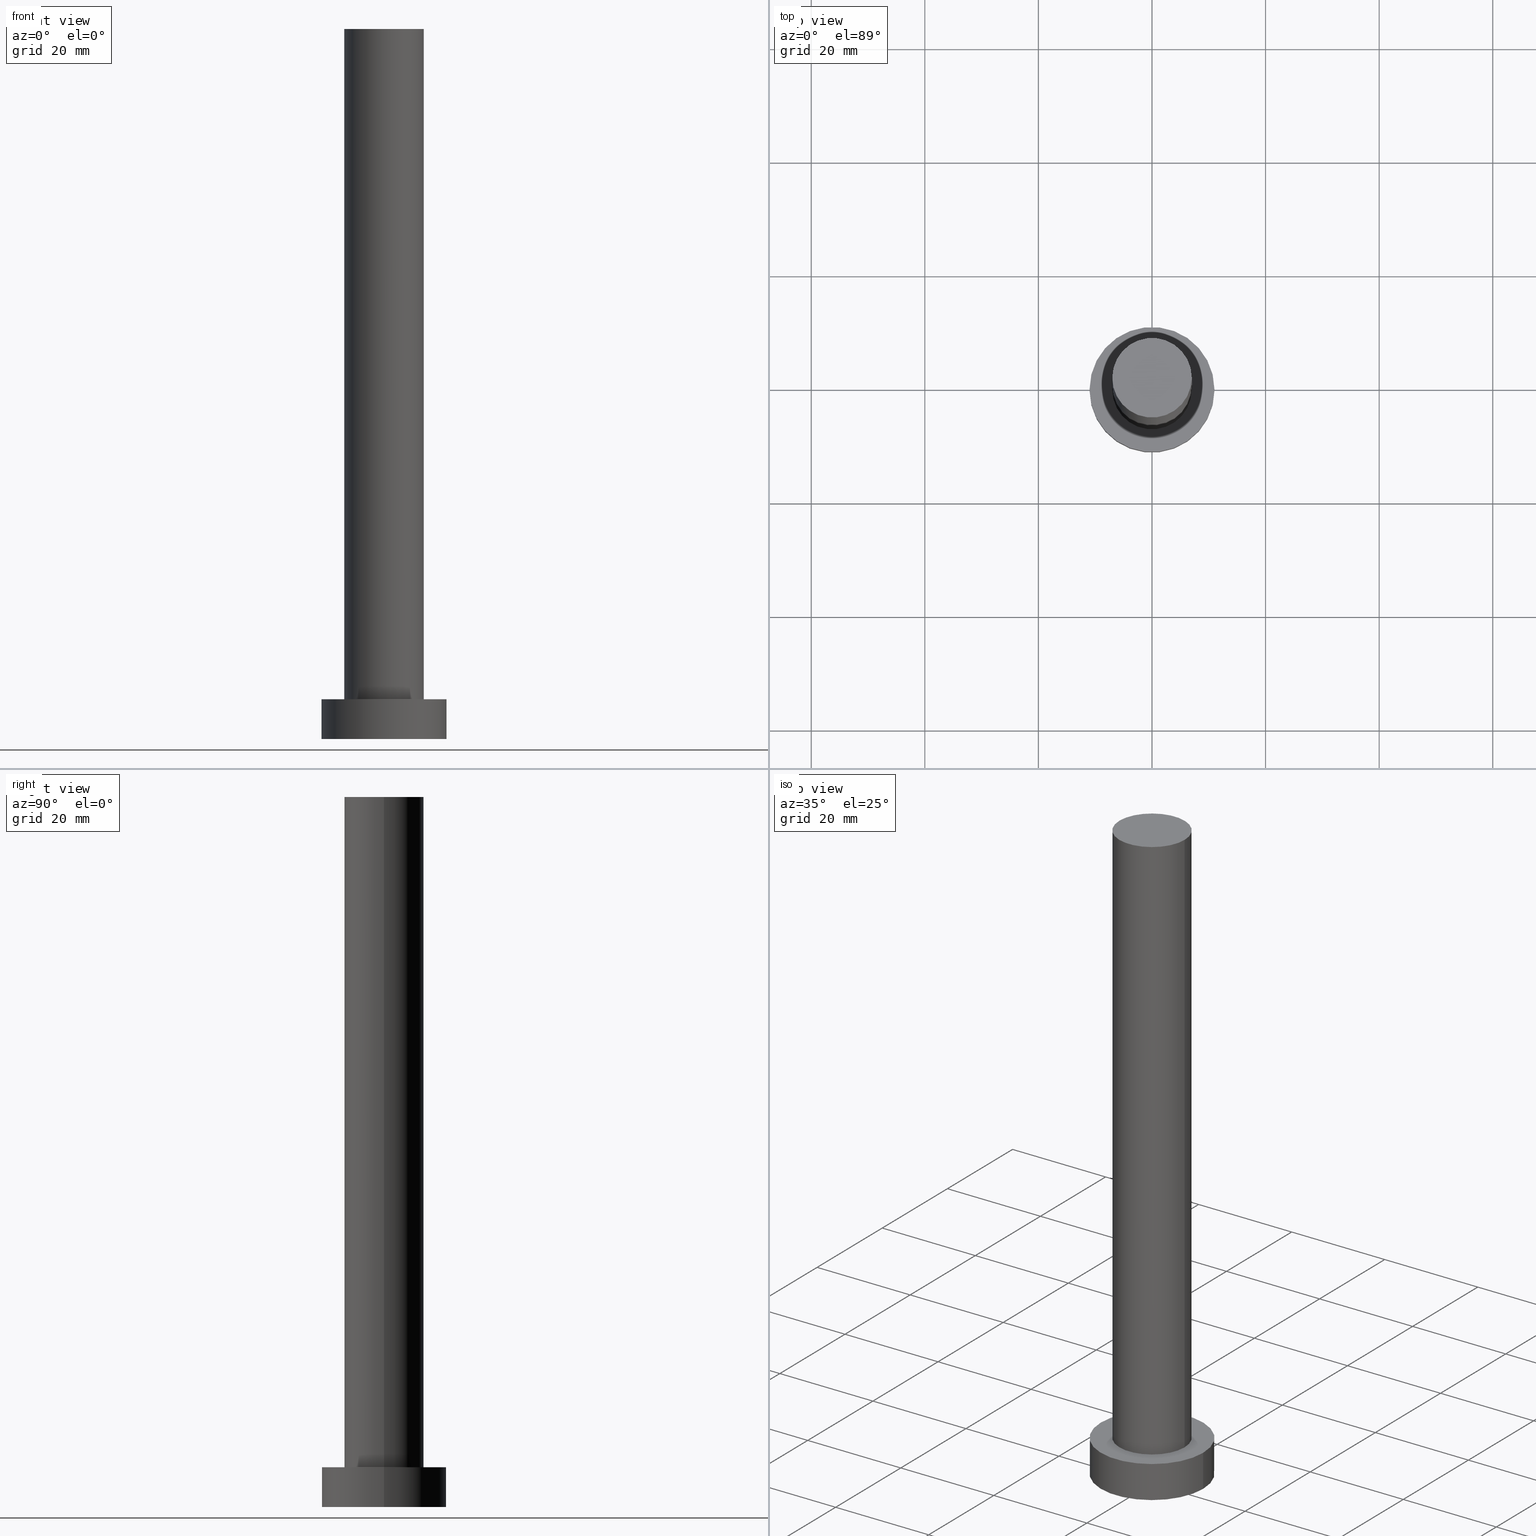
[diagram: canonical four-view strip — front | top / right | iso, engineering-drawing reading convention]
A machine part, canonical four-view strip (front | top / right | iso — engineering-drawing reading convention). The complete STEP part file that produces these views, byte-faithful:
ISO-10303-21;
HEADER;
FILE_DESCRIPTION (( 'STEP AP203' ),
    '1' );
FILE_NAME ('5c96.STEP',
    '2023-02-13T08:55:39',
    ( '' ),
    ( '' ),
    'SwSTEP 2.0',
    'SolidWorks 2019',
    '' );
FILE_SCHEMA (( 'CONFIG_CONTROL_DESIGN' ));
ENDSEC;

DATA;
#1 = DIRECTION ( 'NONE',  ( -0.000000000000000000, -0.000000000000000000, -1.000000000000000000 ) ) ;
#2 = APPLICATION_PROTOCOL_DEFINITION ( 'international standard', 'config_control_design', 1994, #159 ) ;
#3 = CYLINDRICAL_SURFACE ( 'NONE', #226, 11.00000000000000000 ) ;
#4 = CC_DESIGN_DATE_AND_TIME_ASSIGNMENT ( #24, #162, ( #224 ) ) ;
#5 = AXIS2_PLACEMENT_3D ( 'NONE', #173, #133, #72 ) ;
#6 = APPROVAL_STATUS ( 'not_yet_approved' ) ;
#7 = PERSON ( 'NEUR�EN�', 'NEUR�EN�', 'NEUR�EN�', ('NEUR�EN�'), ('NEUR�EN�'), ('NEUR�EN�') ) ;
#8 = DATE_AND_TIME ( #89, #75 ) ;
#9 = MANIFOLD_SOLID_BREP ( 'P�idat vysunut�m3', #185 ) ;
#10 = EDGE_LOOP ( 'NONE', ( #71, #46, #120, #207 ) ) ;
#11 = APPROVAL_STATUS ( 'not_yet_approved' ) ;
#12 = APPROVAL_PERSON_ORGANIZATION ( #37, #125, #199 ) ;
#13 = ORIENTED_EDGE ( 'NONE', *, *, #154, .F. ) ;
#14 = VERTEX_POINT ( 'NONE', #172 ) ;
#15 = LINE ( 'NONE', #112, #123 ) ;
#16 = DIRECTION ( 'NONE',  ( 1.000000000000000000, 0.000000000000000000, -0.000000000000000000 ) ) ;
#17 = CYLINDRICAL_SURFACE ( 'NONE', #169, 7.000000000000000888 ) ;
#18 = ADVANCED_FACE ( 'NONE', ( #19 ), #17, .T. ) ;
#19 = FACE_OUTER_BOUND ( 'NONE', #122, .T. ) ;
#20 = DIRECTION ( 'NONE',  ( 0.000000000000000000, 0.000000000000000000, 1.000000000000000000 ) ) ;
#21 = AXIS2_PLACEMENT_3D ( 'NONE', #136, #61, #221 ) ;
#22 = PERSON_AND_ORGANIZATION_ROLE ( 'creator' ) ;
#23 = CARTESIAN_POINT ( 'NONE',  ( 0.000000000000000000, 0.000000000000000000, 125.0000000000000000 ) ) ;
#24 = DATE_AND_TIME ( #241, #51 ) ;
#25 = PERSON_AND_ORGANIZATION ( #7, #135 ) ;
#26 = EDGE_CURVE ( 'NONE', #70, #76, #106, .T. ) ;
#27 = ORIENTED_EDGE ( 'NONE', *, *, #227, .T. ) ;
#28 = CARTESIAN_POINT ( 'NONE',  ( -7.000000000000000888, 0.000000000000000000, 125.0000000000000000 ) ) ;
#29 = ADVANCED_BREP_SHAPE_REPRESENTATION ( '5c96', ( #9, #21 ), #151 ) ;
#30 = CARTESIAN_POINT ( 'NONE',  ( 0.000000000000000000, 0.000000000000000000, 0.000000000000000000 ) ) ;
#31 = DIRECTION ( 'NONE',  ( 1.000000000000000000, 0.000000000000000000, 0.000000000000000000 ) ) ;
#32 = DIRECTION ( 'NONE',  ( 1.000000000000000000, 0.000000000000000000, 0.000000000000000000 ) ) ;
#33 = DIRECTION ( 'NONE',  ( -0.000000000000000000, -0.000000000000000000, -1.000000000000000000 ) ) ;
#34 = ADVANCED_FACE ( 'NONE', ( #189 ), #218, .T. ) ;
#35 = CARTESIAN_POINT ( 'NONE',  ( 0.000000000000000000, 0.000000000000000000, 7.000000000000000000 ) ) ;
#36 = DIRECTION ( 'NONE',  ( 1.000000000000000000, 0.000000000000000000, 0.000000000000000000 ) ) ;
#37 = PERSON_AND_ORGANIZATION ( #7, #135 ) ;
#38 = CARTESIAN_POINT ( 'NONE',  ( 0.000000000000000000, 0.000000000000000000, 125.0000000000000000 ) ) ;
#39 = CC_DESIGN_PERSON_AND_ORGANIZATION_ASSIGNMENT ( #161, #22, ( #224 ) ) ;
#40 = CALENDAR_DATE ( 2023, 13, 2 ) ;
#41 = AXIS2_PLACEMENT_3D ( 'NONE', #78, #114, #192 ) ;
#42 = APPROVAL_ROLE ( '' ) ;
#43 = PRODUCT_DEFINITION_SHAPE ( 'NONE', 'NONE',  #224 ) ;
#44 = CC_DESIGN_PERSON_AND_ORGANIZATION_ASSIGNMENT ( #184, #144, ( #255 ) ) ;
#45 = VERTEX_POINT ( 'NONE', #93 ) ;
#46 = ORIENTED_EDGE ( 'NONE', *, *, #227, .F. ) ;
#47 = EDGE_LOOP ( 'NONE', ( #225, #90, #165, #145 ) ) ;
#48 = EDGE_CURVE ( 'NONE', #87, #70, #15, .T. ) ;
#49 = DATE_TIME_ROLE ( 'classification_date' ) ;
#50 = ORIENTED_EDGE ( 'NONE', *, *, #150, .T. ) ;
#51 = LOCAL_TIME ( 9, 55, 39.00000000000000000, #203 ) ;
#52 = DIRECTION ( 'NONE',  ( 0.000000000000000000, 0.000000000000000000, 1.000000000000000000 ) ) ;
#53 = CARTESIAN_POINT ( 'NONE',  ( 0.000000000000000000, 0.000000000000000000, 125.0000000000000000 ) ) ;
#54 = CIRCLE ( 'NONE', #249, 7.000000000000000888 ) ;
#55 = CYLINDRICAL_SURFACE ( 'NONE', #204, 7.000000000000000888 ) ;
#56 = FACE_OUTER_BOUND ( 'NONE', #188, .T. ) ;
#57 = CC_DESIGN_PERSON_AND_ORGANIZATION_ASSIGNMENT ( #25, #140, ( #186 ) ) ;
#58 = ORIENTED_EDGE ( 'NONE', *, *, #117, .T. ) ;
#59 = APPROVAL_ROLE ( '' ) ;
#60 = CARTESIAN_POINT ( 'NONE',  ( -7.000000000000000888, 0.000000000000000000, 7.000000000000000000 ) ) ;
#61 = DIRECTION ( 'NONE',  ( 0.000000000000000000, 0.000000000000000000, 1.000000000000000000 ) ) ;
#62 = CC_DESIGN_APPROVAL ( #84, ( #255 ) ) ;
#63 = PERSON_AND_ORGANIZATION ( #7, #135 ) ;
#64 = PERSON_AND_ORGANIZATION ( #7, #135 ) ;
#65 = ORIENTED_EDGE ( 'NONE', *, *, #48, .T. ) ;
#66 = CC_DESIGN_APPROVAL ( #125, ( #224 ) ) ;
#67 = DATE_AND_TIME ( #237, #232 ) ;
#68 = ORIENTED_EDGE ( 'NONE', *, *, #233, .T. ) ;
#69 = PERSON_AND_ORGANIZATION_ROLE ( 'creator' ) ;
#70 = VERTEX_POINT ( 'NONE', #113 ) ;
#71 = ORIENTED_EDGE ( 'NONE', *, *, #150, .F. ) ;
#72 = DIRECTION ( 'NONE',  ( -1.000000000000000000, 0.000000000000000000, 0.000000000000000000 ) ) ;
#73 = FACE_BOUND ( 'NONE', #195, .T. ) ;
#74 = DIRECTION ( 'NONE',  ( 0.000000000000000000, 0.000000000000000000, 1.000000000000000000 ) ) ;
#75 = LOCAL_TIME ( 9, 55, 39.00000000000000000, #206 ) ;
#76 = VERTEX_POINT ( 'NONE', #147 ) ;
#77 = ADVANCED_FACE ( 'NONE', ( #73, #231 ), #170, .T. ) ;
#78 = CARTESIAN_POINT ( 'NONE',  ( 0.000000000000000000, 0.000000000000000000, 7.000000000000000000 ) ) ;
#79 = DIRECTION ( 'NONE',  ( 0.000000000000000000, 0.000000000000000000, 1.000000000000000000 ) ) ;
#80 = LOCAL_TIME ( 9, 55, 39.00000000000000000, #223 ) ;
#81 = DATE_AND_TIME ( #40, #80 ) ;
#82 = APPROVAL_DATE_TIME ( #81, #125 ) ;
#83 = CC_DESIGN_SECURITY_CLASSIFICATION ( #186, ( #255 ) ) ;
#84 = APPROVAL ( #219, 'NEUR�EN�' ) ;
#85 = ORIENTED_EDGE ( 'NONE', *, *, #201, .T. ) ;
#86 = COORDINATED_UNIVERSAL_TIME_OFFSET ( 1, 0, .AHEAD. ) ;
#87 = VERTEX_POINT ( 'NONE', #98 ) ;
#88 = EDGE_CURVE ( 'NONE', #243, #228, #230, .T. ) ;
#89 = CALENDAR_DATE ( 2023, 13, 2 ) ;
#90 = ORIENTED_EDGE ( 'NONE', *, *, #180, .T. ) ;
#91 = CARTESIAN_POINT ( 'NONE',  ( 0.000000000000000000, 0.000000000000000000, 0.000000000000000000 ) ) ;
#92 = PRODUCT ( '5c96', '5c96', '', ( #242 ) ) ;
#93 = CARTESIAN_POINT ( 'NONE',  ( 11.00000000000000000, 1.347111479062088405E-15, 7.000000000000000000 ) ) ;
#94 = APPLICATION_CONTEXT ( 'configuration controlled 3d designs of mechanical parts and assemblies' ) ;
#95 = DIRECTION ( 'NONE',  ( -0.000000000000000000, -0.000000000000000000, -1.000000000000000000 ) ) ;
#96 = ADVANCED_FACE ( 'NONE', ( #130 ), #55, .T. ) ;
#97 = DIRECTION ( 'NONE',  ( 1.000000000000000000, 0.000000000000000000, 0.000000000000000000 ) ) ;
#98 = CARTESIAN_POINT ( 'NONE',  ( -11.00000000000000000, 0.000000000000000000, 7.000000000000000000 ) ) ;
#99 =( NAMED_UNIT ( * ) PLANE_ANGLE_UNIT ( ) SI_UNIT ( $, .RADIAN. ) );
#100 =( LENGTH_UNIT ( ) NAMED_UNIT ( * ) SI_UNIT ( .MILLI., .METRE. ) );
#101 = AXIS2_PLACEMENT_3D ( 'NONE', #127, #109, #111 ) ;
#102 = CC_DESIGN_PERSON_AND_ORGANIZATION_ASSIGNMENT ( #155, #239, ( #92 ) ) ;
#103 = FACE_OUTER_BOUND ( 'NONE', #168, .T. ) ;
#104 = DIRECTION ( 'NONE',  ( -0.000000000000000000, -0.000000000000000000, -1.000000000000000000 ) ) ;
#105 = DIRECTION ( 'NONE',  ( 0.000000000000000000, 0.000000000000000000, 1.000000000000000000 ) ) ;
#106 = CIRCLE ( 'NONE', #236, 11.00000000000000000 ) ;
#107 = AXIS2_PLACEMENT_3D ( 'NONE', #30, #74, #32 ) ;
#108 = EDGE_CURVE ( 'NONE', #228, #14, #220, .T. ) ;
#109 = DIRECTION ( 'NONE',  ( 0.000000000000000000, 0.000000000000000000, 1.000000000000000000 ) ) ;
#110 = ADVANCED_FACE ( 'NONE', ( #153 ), #235, .F. ) ;
#111 = DIRECTION ( 'NONE',  ( 1.000000000000000000, 0.000000000000000000, 0.000000000000000000 ) ) ;
#112 = CARTESIAN_POINT ( 'NONE',  ( -11.00000000000000000, 0.000000000000000000, 7.000000000000000000 ) ) ;
#113 = CARTESIAN_POINT ( 'NONE',  ( -11.00000000000000000, 0.000000000000000000, 0.000000000000000000 ) ) ;
#114 = DIRECTION ( 'NONE',  ( 0.000000000000000000, 0.000000000000000000, 1.000000000000000000 ) ) ;
#115 = DIRECTION ( 'NONE',  ( 0.000000000000000000, 0.000000000000000000, 1.000000000000000000 ) ) ;
#116 = DIRECTION ( 'NONE',  ( 1.000000000000000000, 0.000000000000000000, 0.000000000000000000 ) ) ;
#117 = EDGE_CURVE ( 'NONE', #45, #87, #198, .T. ) ;
#118 = DIRECTION ( 'NONE',  ( 1.000000000000000000, 0.000000000000000000, -0.000000000000000000 ) ) ;
#119 = EDGE_LOOP ( 'NONE', ( #143, #13 ) ) ;
#120 = ORIENTED_EDGE ( 'NONE', *, *, #88, .T. ) ;
#121 = PERSON_AND_ORGANIZATION ( #7, #135 ) ;
#122 = EDGE_LOOP ( 'NONE', ( #142, #50, #68, #246 ) ) ;
#123 = VECTOR ( 'NONE', #1, 1000.000000000000000 ) ;
#124 = ORIENTED_EDGE ( 'NONE', *, *, #180, .F. ) ;
#125 = APPROVAL ( #6, 'NEUR�EN�' ) ;
#126 = ORIENTED_EDGE ( 'NONE', *, *, #26, .T. ) ;
#127 = CARTESIAN_POINT ( 'NONE',  ( 0.000000000000000000, 0.000000000000000000, 7.000000000000000000 ) ) ;
#128 = CARTESIAN_POINT ( 'NONE',  ( 0.000000000000000000, 0.000000000000000000, 125.0000000000000000 ) ) ;
#129 = APPROVAL_PERSON_ORGANIZATION ( #63, #84, #59 ) ;
#130 = FACE_OUTER_BOUND ( 'NONE', #10, .T. ) ;
#131 = CC_DESIGN_DATE_AND_TIME_ASSIGNMENT ( #8, #49, ( #186 ) ) ;
#132 = PLANE ( 'NONE',  #215 ) ;
#133 = DIRECTION ( 'NONE',  ( -0.000000000000000000, -0.000000000000000000, -1.000000000000000000 ) ) ;
#134 = VECTOR ( 'NONE', #33, 1000.000000000000000 ) ;
#135 = ORGANIZATION ( 'NEUR�EN�', 'NEUR�EN�', '' ) ;
#136 = CARTESIAN_POINT ( 'NONE',  ( 0.000000000000000000, 0.000000000000000000, 0.000000000000000000 ) ) ;
#137 = DIRECTION ( 'NONE',  ( 1.000000000000000000, 0.000000000000000000, 0.000000000000000000 ) ) ;
#138 = EDGE_CURVE ( 'NONE', #167, #243, #253, .T. ) ;
#139 = VECTOR ( 'NONE', #234, 1000.000000000000000 ) ;
#140 = PERSON_AND_ORGANIZATION_ROLE ( 'classification_officer' ) ;
#141 = CALENDAR_DATE ( 2023, 13, 2 ) ;
#142 = ORIENTED_EDGE ( 'NONE', *, *, #138, .F. ) ;
#143 = ORIENTED_EDGE ( 'NONE', *, *, #26, .F. ) ;
#144 = PERSON_AND_ORGANIZATION_ROLE ( 'design_supplier' ) ;
#145 = ORIENTED_EDGE ( 'NONE', *, *, #48, .F. ) ;
#146 = VECTOR ( 'NONE', #211, 1000.000000000000000 ) ;
#147 = CARTESIAN_POINT ( 'NONE',  ( 11.00000000000000000, 1.347111479062088405E-15, 0.000000000000000000 ) ) ;
#148 = DIRECTION ( 'NONE',  ( 1.000000000000000000, 0.000000000000000000, -0.000000000000000000 ) ) ;
#149 = CARTESIAN_POINT ( 'NONE',  ( 7.000000000000000888, 8.572527594031474176E-16, 125.0000000000000000 ) ) ;
#150 = EDGE_CURVE ( 'NONE', #167, #14, #193, .T. ) ;
#151 =( GEOMETRIC_REPRESENTATION_CONTEXT ( 3 ) GLOBAL_UNCERTAINTY_ASSIGNED_CONTEXT ( ( #166 ) ) GLOBAL_UNIT_ASSIGNED_CONTEXT ( ( #100, #99, #158 ) ) REPRESENTATION_CONTEXT ( 'NONE', 'WORKASPACE' ) );
#152 = CARTESIAN_POINT ( 'NONE',  ( 11.00000000000000000, 1.347111479062088405E-15, 7.000000000000000000 ) ) ;
#153 = FACE_OUTER_BOUND ( 'NONE', #119, .T. ) ;
#154 = EDGE_CURVE ( 'NONE', #76, #70, #157, .T. ) ;
#155 = PERSON_AND_ORGANIZATION ( #7, #135 ) ;
#156 = AXIS2_PLACEMENT_3D ( 'NONE', #229, #52, #148 ) ;
#157 = CIRCLE ( 'NONE', #107, 11.00000000000000000 ) ;
#158 =( NAMED_UNIT ( * ) SI_UNIT ( $, .STERADIAN. ) SOLID_ANGLE_UNIT ( ) );
#159 = APPLICATION_CONTEXT ( 'configuration controlled 3d designs of mechanical parts and assemblies' ) ;
#160 = CARTESIAN_POINT ( 'NONE',  ( 0.000000000000000000, 0.000000000000000000, 7.000000000000000000 ) ) ;
#161 = PERSON_AND_ORGANIZATION ( #7, #135 ) ;
#162 = DATE_TIME_ROLE ( 'creation_date' ) ;
#163 = EDGE_LOOP ( 'NONE', ( #85, #58 ) ) ;
#164 = SECURITY_CLASSIFICATION_LEVEL ( 'unclassified' ) ;
#165 = ORIENTED_EDGE ( 'NONE', *, *, #154, .T. ) ;
#166 = UNCERTAINTY_MEASURE_WITH_UNIT (LENGTH_MEASURE( 1.000000000000000082E-05 ), #100, 'distance_accuracy_value', 'NONE');
#167 = VERTEX_POINT ( 'NONE', #149 ) ;
#168 = EDGE_LOOP ( 'NONE', ( #124, #248, #65, #126 ) ) ;
#169 = AXIS2_PLACEMENT_3D ( 'NONE', #128, #95, #251 ) ;
#170 = PLANE ( 'NONE',  #156 ) ;
#171 = AXIS2_PLACEMENT_3D ( 'NONE', #35, #115, #36 ) ;
#172 = CARTESIAN_POINT ( 'NONE',  ( 7.000000000000000888, 8.572527594031474176E-16, 7.000000000000000000 ) ) ;
#173 = CARTESIAN_POINT ( 'NONE',  ( 0.000000000000000000, 0.000000000000000000, 7.000000000000000000 ) ) ;
#174 = AXIS2_PLACEMENT_3D ( 'NONE', #250, #190, #97 ) ;
#175 = CARTESIAN_POINT ( 'NONE',  ( 7.000000000000000888, 8.572527594031474176E-16, 125.0000000000000000 ) ) ;
#176 = CARTESIAN_POINT ( 'NONE',  ( 0.000000000000000000, 0.000000000000000000, 0.000000000000000000 ) ) ;
#177 = APPLICATION_PROTOCOL_DEFINITION ( 'international standard', 'config_control_design', 1994, #94 ) ;
#178 = APPROVAL_PERSON_ORGANIZATION ( #121, #212, #42 ) ;
#179 = CARTESIAN_POINT ( 'NONE',  ( 0.000000000000000000, 0.000000000000000000, 7.000000000000000000 ) ) ;
#180 = EDGE_CURVE ( 'NONE', #45, #76, #254, .T. ) ;
#181 = DIRECTION ( 'NONE',  ( 0.000000000000000000, 0.000000000000000000, 1.000000000000000000 ) ) ;
#182 = DESIGN_CONTEXT ( 'detailed design', #159, 'design' ) ;
#183 = ORIENTED_EDGE ( 'NONE', *, *, #138, .T. ) ;
#184 = PERSON_AND_ORGANIZATION ( #7, #135 ) ;
#185 = CLOSED_SHELL ( 'NONE', ( #18, #34, #208, #77, #110, #96, #194 ) ) ;
#186 = SECURITY_CLASSIFICATION ( '', '', #164 ) ;
#187 = APPROVAL_DATE_TIME ( #205, #212 ) ;
#188 = EDGE_LOOP ( 'NONE', ( #27, #183 ) ) ;
#189 = FACE_OUTER_BOUND ( 'NONE', #47, .T. ) ;
#190 = DIRECTION ( 'NONE',  ( 0.000000000000000000, 0.000000000000000000, 1.000000000000000000 ) ) ;
#191 = CIRCLE ( 'NONE', #171, 11.00000000000000000 ) ;
#192 = DIRECTION ( 'NONE',  ( 1.000000000000000000, 0.000000000000000000, 0.000000000000000000 ) ) ;
#193 = LINE ( 'NONE', #175, #146 ) ;
#194 = ADVANCED_FACE ( 'NONE', ( #56 ), #132, .T. ) ;
#195 = EDGE_LOOP ( 'NONE', ( #210, #245 ) ) ;
#196 = AXIS2_PLACEMENT_3D ( 'NONE', #23, #181, #137 ) ;
#197 = COORDINATED_UNIVERSAL_TIME_OFFSET ( 1, 0, .AHEAD. ) ;
#198 = CIRCLE ( 'NONE', #101, 11.00000000000000000 ) ;
#199 = APPROVAL_ROLE ( '' ) ;
#200 = CIRCLE ( 'NONE', #196, 7.000000000000000888 ) ;
#201 = EDGE_CURVE ( 'NONE', #87, #45, #191, .T. ) ;
#202 = CARTESIAN_POINT ( 'NONE',  ( -7.000000000000000888, 0.000000000000000000, 125.0000000000000000 ) ) ;
#203 = COORDINATED_UNIVERSAL_TIME_OFFSET ( 1, 0, .AHEAD. ) ;
#204 = AXIS2_PLACEMENT_3D ( 'NONE', #53, #214, #252 ) ;
#205 = DATE_AND_TIME ( #141, #222 ) ;
#206 = COORDINATED_UNIVERSAL_TIME_OFFSET ( 1, 0, .AHEAD. ) ;
#207 = ORIENTED_EDGE ( 'NONE', *, *, #108, .T. ) ;
#208 = ADVANCED_FACE ( 'NONE', ( #103 ), #3, .T. ) ;
#209 = CC_DESIGN_APPROVAL ( #212, ( #186 ) ) ;
#210 = ORIENTED_EDGE ( 'NONE', *, *, #108, .F. ) ;
#211 = DIRECTION ( 'NONE',  ( -0.000000000000000000, -0.000000000000000000, -1.000000000000000000 ) ) ;
#212 = APPROVAL ( #11, 'NEUR�EN�' ) ;
#213 = AXIS2_PLACEMENT_3D ( 'NONE', #91, #216, #16 ) ;
#214 = DIRECTION ( 'NONE',  ( -0.000000000000000000, -0.000000000000000000, -1.000000000000000000 ) ) ;
#215 = AXIS2_PLACEMENT_3D ( 'NONE', #38, #105, #118 ) ;
#216 = DIRECTION ( 'NONE',  ( 0.000000000000000000, 0.000000000000000000, 1.000000000000000000 ) ) ;
#217 = CC_DESIGN_PERSON_AND_ORGANIZATION_ASSIGNMENT ( #64, #69, ( #255 ) ) ;
#218 = CYLINDRICAL_SURFACE ( 'NONE', #5, 11.00000000000000000 ) ;
#219 = APPROVAL_STATUS ( 'not_yet_approved' ) ;
#220 = CIRCLE ( 'NONE', #41, 7.000000000000000888 ) ;
#221 = DIRECTION ( 'NONE',  ( 1.000000000000000000, 0.000000000000000000, 0.000000000000000000 ) ) ;
#222 = LOCAL_TIME ( 9, 55, 39.00000000000000000, #86 ) ;
#223 = COORDINATED_UNIVERSAL_TIME_OFFSET ( 1, 0, .AHEAD. ) ;
#224 = PRODUCT_DEFINITION ( 'NEZN�M�', '', #255, #182 ) ;
#225 = ORIENTED_EDGE ( 'NONE', *, *, #117, .F. ) ;
#226 = AXIS2_PLACEMENT_3D ( 'NONE', #179, #104, #240 ) ;
#227 = EDGE_CURVE ( 'NONE', #243, #167, #200, .T. ) ;
#228 = VERTEX_POINT ( 'NONE', #60 ) ;
#229 = CARTESIAN_POINT ( 'NONE',  ( 0.000000000000000000, 0.000000000000000000, 7.000000000000000000 ) ) ;
#230 = LINE ( 'NONE', #28, #134 ) ;
#231 = FACE_OUTER_BOUND ( 'NONE', #163, .T. ) ;
#232 = LOCAL_TIME ( 9, 55, 39.00000000000000000, #197 ) ;
#233 = EDGE_CURVE ( 'NONE', #14, #228, #54, .T. ) ;
#234 = DIRECTION ( 'NONE',  ( -0.000000000000000000, -0.000000000000000000, -1.000000000000000000 ) ) ;
#235 = PLANE ( 'NONE',  #213 ) ;
#236 = AXIS2_PLACEMENT_3D ( 'NONE', #176, #20, #31 ) ;
#237 = CALENDAR_DATE ( 2023, 13, 2 ) ;
#238 = PRODUCT_RELATED_PRODUCT_CATEGORY ( 'detail', '', ( #92 ) ) ;
#239 = PERSON_AND_ORGANIZATION_ROLE ( 'design_owner' ) ;
#240 = DIRECTION ( 'NONE',  ( -1.000000000000000000, 0.000000000000000000, 0.000000000000000000 ) ) ;
#241 = CALENDAR_DATE ( 2023, 13, 2 ) ;
#242 = MECHANICAL_CONTEXT ( 'NONE', #94, 'mechanical' ) ;
#243 = VERTEX_POINT ( 'NONE', #202 ) ;
#244 = SHAPE_DEFINITION_REPRESENTATION ( #43, #29 ) ;
#245 = ORIENTED_EDGE ( 'NONE', *, *, #233, .F. ) ;
#246 = ORIENTED_EDGE ( 'NONE', *, *, #88, .F. ) ;
#247 = APPROVAL_DATE_TIME ( #67, #84 ) ;
#248 = ORIENTED_EDGE ( 'NONE', *, *, #201, .F. ) ;
#249 = AXIS2_PLACEMENT_3D ( 'NONE', #160, #79, #116 ) ;
#250 = CARTESIAN_POINT ( 'NONE',  ( 0.000000000000000000, 0.000000000000000000, 125.0000000000000000 ) ) ;
#251 = DIRECTION ( 'NONE',  ( -1.000000000000000000, 0.000000000000000000, 0.000000000000000000 ) ) ;
#252 = DIRECTION ( 'NONE',  ( -1.000000000000000000, 0.000000000000000000, 0.000000000000000000 ) ) ;
#253 = CIRCLE ( 'NONE', #174, 7.000000000000000888 ) ;
#254 = LINE ( 'NONE', #152, #139 ) ;
#255 = PRODUCT_DEFINITION_FORMATION_WITH_SPECIFIED_SOURCE ( 'LIBOVOLN�', '', #92, .NOT_KNOWN. ) ;
ENDSEC;
END-ISO-10303-21;
